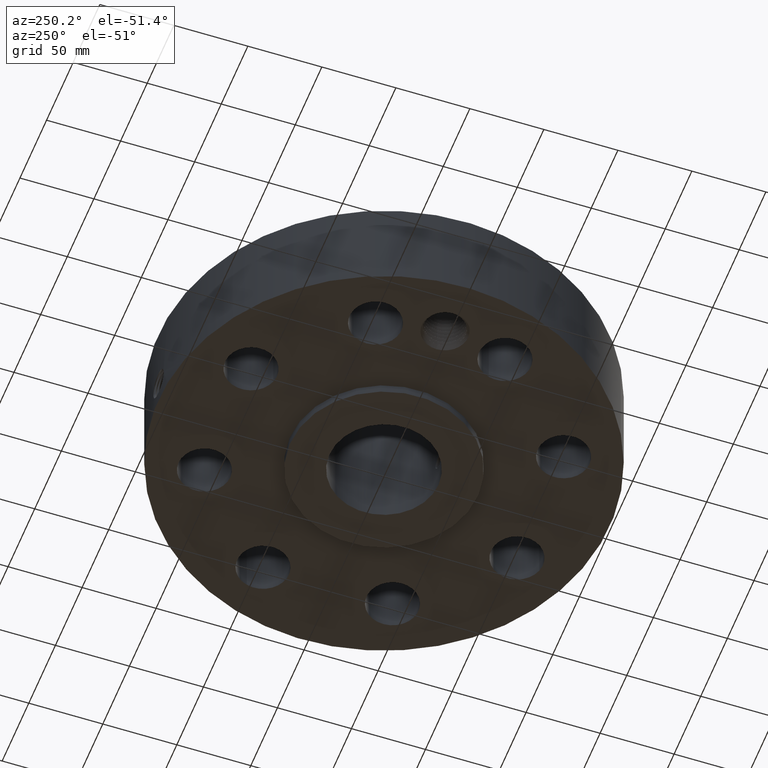
[diagram: clean part render]
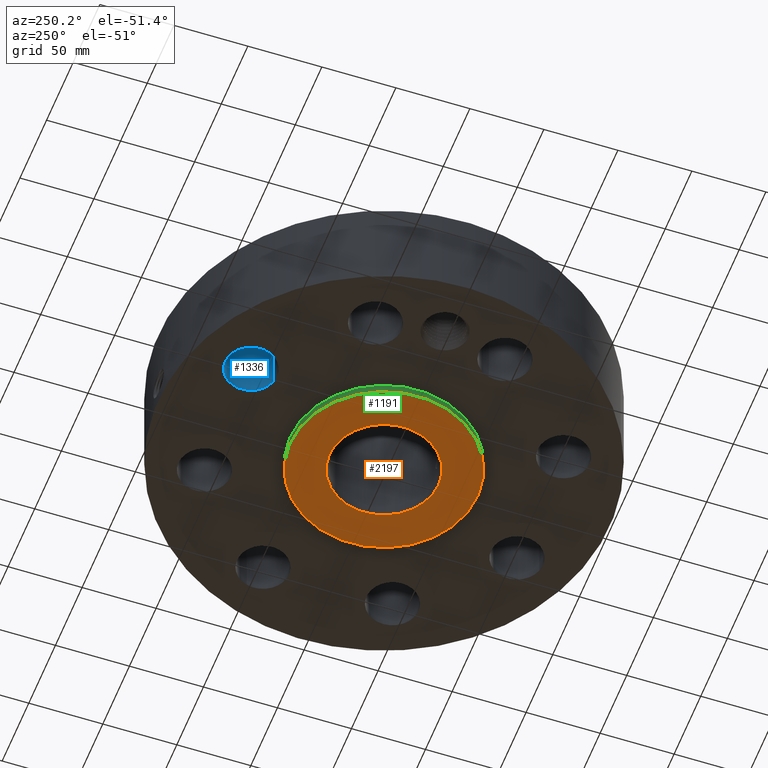
[diagram: same view with three faces highlighted in distinct colors, each labeled with its STEP entity id]
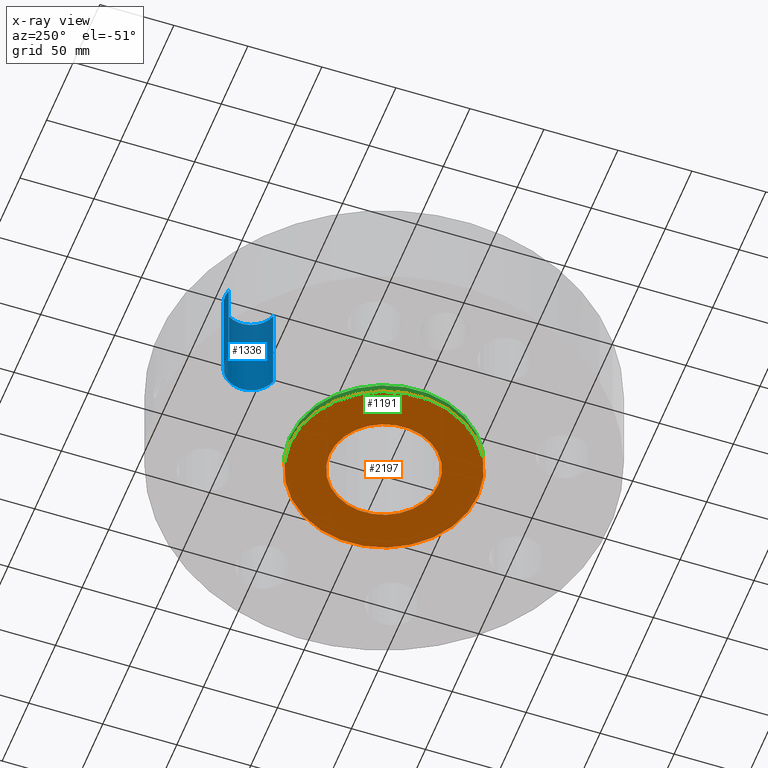
[diagram: x-ray of the same camera — body ghosted, the three highlighted faces saturated]
A machine part, auxiliary view with three faces highlighted in distinct colors.
The next image is the same camera in x-ray (body ghosted, the three faces saturated) — at least one of them is partly hidden behind the body in this view.
Their STEP definitions:

[orange] entity #2197 — the highlighted planar face has unit normal (0, 0, -1).
#1156=AXIS2_PLACEMENT_3D('Circle Axis2P3D',#1154,#1155,$) ;
#1182=AXIS2_PLACEMENT_3D('Circle Axis2P3D',#1180,#1181,$) ;
#2173=AXIS2_PLACEMENT_3D('Plane Axis2P3D',#2170,#2171,#2172) ;
#2181=AXIS2_PLACEMENT_3D('Circle Axis2P3D',#2179,#2180,$) ;
#2190=AXIS2_PLACEMENT_3D('Circle Axis2P3D',#2188,#2189,$) ;
#1154=CARTESIAN_POINT('Axis2P3D Location',(0.,0.,0.)) ;
#1158=CARTESIAN_POINT('Vertex',(1.19856384652,2.19395640473,0.)) ;
#1160=CARTESIAN_POINT('Vertex',(-1.19856384652,-2.19395640473,0.)) ;
#1180=CARTESIAN_POINT('Axis2P3D Location',(0.,0.,0.)) ;
#2170=CARTESIAN_POINT('Axis2P3D Location',(0.,1.45000000001,0.)) ;
#2179=CARTESIAN_POINT('Axis2P3D Location',(0.,0.,0.)) ;
#2183=CARTESIAN_POINT('Vertex',(0.695167030979,1.27249471475,-5.59482469102E-015)) ;
#2185=CARTESIAN_POINT('Vertex',(-0.695167030979,-1.27249471475,-5.59482469102E-015)) ;
#2188=CARTESIAN_POINT('Axis2P3D Location',(0.,0.,0.)) ;
#1155=DIRECTION('Axis2P3D Direction',(0.,0.,-0.0393700787402)) ;
#1181=DIRECTION('Axis2P3D Direction',(0.,0.,-0.0393700787402)) ;
#2171=DIRECTION('Axis2P3D Direction',(0.,0.,-0.0393700787402)) ;
#2172=DIRECTION('Axis2P3D XDirection',(0.0393700787402,0.,0.)) ;
#2180=DIRECTION('Axis2P3D Direction',(0.,0.,-0.0393700787402)) ;
#2189=DIRECTION('Axis2P3D Direction',(0.,0.,-0.0393700787402)) ;
#2176=ORIENTED_EDGE('',*,*,#1184,.T.) ;
#2177=ORIENTED_EDGE('',*,*,#1162,.T.) ;
#2194=ORIENTED_EDGE('',*,*,#2187,.F.) ;
#2195=ORIENTED_EDGE('',*,*,#2192,.F.) ;
#2196=FACE_BOUND('',#2193,.T.) ;
#2197=ADVANCED_FACE('PartBody',(#2178,#2196),#2174,.T.) ;
#1157=CIRCLE('generated circle',#1156,2.50000000001) ;
#1183=CIRCLE('generated circle',#1182,2.50000000001) ;
#2182=CIRCLE('generated circle',#2181,1.45000000001) ;
#2191=CIRCLE('generated circle',#2190,1.45000000001) ;
#1162=EDGE_CURVE('',#1159,#1161,#1157,.T.) ;
#1184=EDGE_CURVE('',#1161,#1159,#1183,.T.) ;
#2187=EDGE_CURVE('',#2184,#2186,#2182,.T.) ;
#2192=EDGE_CURVE('',#2186,#2184,#2191,.T.) ;
#2175=EDGE_LOOP('',(#2176,#2177)) ;
#2193=EDGE_LOOP('',(#2194,#2195)) ;
#2178=FACE_OUTER_BOUND('',#2175,.T.) ;
#2174=PLANE('',#2173) ;
#1159=VERTEX_POINT('',#1158) ;
#1161=VERTEX_POINT('',#1160) ;
#2184=VERTEX_POINT('',#2183) ;
#2186=VERTEX_POINT('',#2185) ;

[blue] entity #1336 — the highlighted cylindrical surface (edge-blend (fillet) strip) has radius 17.526 mm, axis along (0, 0, -1).
#345=AXIS2_PLACEMENT_3D('Circle Axis2P3D',#343,#344,$) ;
#657=AXIS2_PLACEMENT_3D('Circle Axis2P3D',#655,#656,$) ;
#1311=AXIS2_PLACEMENT_3D('Cylinder Axis2P3D',#1308,#1309,#1310) ;
#338=CARTESIAN_POINT('Vertex',(-1.52781316916,3.49536865163,0.250000000001)) ;
#340=CARTESIAN_POINT('Vertex',(-1.91633772214,4.81954714101,0.250000000001)) ;
#343=CARTESIAN_POINT('Axis2P3D Location',(-1.72207544565,4.15745789632,0.250000000001)) ;
#655=CARTESIAN_POINT('Axis2P3D Location',(-1.72207544565,4.15745789632,2.87000000001)) ;
#659=CARTESIAN_POINT('Vertex',(-1.91633772214,4.81954714101,2.87000000001)) ;
#661=CARTESIAN_POINT('Vertex',(-1.52781316916,3.49536865163,2.87000000001)) ;
#1308=CARTESIAN_POINT('Axis2P3D Location',(-1.72207544565,4.15745789632,2.86606299214)) ;
#1313=CARTESIAN_POINT('Line Origine',(-1.52781316916,3.49536865163,1.56000000001)) ;
#1318=CARTESIAN_POINT('Line Origine',(-1.91633772214,4.81954714101,1.56000000001)) ;
#344=DIRECTION('Axis2P3D Direction',(0.,0.,-0.0393700787402)) ;
#656=DIRECTION('Axis2P3D Direction',(0.,0.,-0.0393700787402)) ;
#1309=DIRECTION('Axis2P3D Direction',(0.,0.,-0.0393700787402)) ;
#1310=DIRECTION('Axis2P3D XDirection',(-0.0110842335096,0.0377775444876,0.)) ;
#1314=DIRECTION('Vector Direction',(0.,0.,-0.0393700787402)) ;
#1319=DIRECTION('Vector Direction',(0.,0.,-0.0393700787402)) ;
#1315=VECTOR('Line Direction',#1314,0.0393700787402) ;
#1320=VECTOR('Line Direction',#1319,0.0393700787402) ;
#1331=ORIENTED_EDGE('',*,*,#1322,.F.) ;
#1332=ORIENTED_EDGE('',*,*,#347,.T.) ;
#1333=ORIENTED_EDGE('',*,*,#1317,.T.) ;
#1334=ORIENTED_EDGE('',*,*,#663,.F.) ;
#1336=ADVANCED_FACE('PartBody',(#1335),#1312,.F.) ;
#346=CIRCLE('generated circle',#345,0.690000000003) ;
#658=CIRCLE('generated circle',#657,0.690000000003) ;
#1312=CYLINDRICAL_SURFACE('generated cylinder',#1311,0.690000000003) ;
#347=EDGE_CURVE('',#341,#339,#346,.T.) ;
#663=EDGE_CURVE('',#660,#662,#658,.T.) ;
#1317=EDGE_CURVE('',#339,#662,#1316,.F.) ;
#1322=EDGE_CURVE('',#341,#660,#1321,.F.) ;
#1330=EDGE_LOOP('',(#1331,#1332,#1333,#1334)) ;
#1335=FACE_OUTER_BOUND('',#1330,.T.) ;
#1316=LINE('Line',#1313,#1315) ;
#1321=LINE('Line',#1318,#1320) ;
#339=VERTEX_POINT('',#338) ;
#341=VERTEX_POINT('',#340) ;
#660=VERTEX_POINT('',#659) ;
#662=VERTEX_POINT('',#661) ;

[green] entity #1191 — the highlighted cylindrical surface (partial cylindrical patch) has radius 63.5 mm, axis along (0, 0, -1).
#255=AXIS2_PLACEMENT_3D('Circle Axis2P3D',#253,#254,$) ;
#1152=AXIS2_PLACEMENT_3D('Cylinder Axis2P3D',#1149,#1150,#1151) ;
#1182=AXIS2_PLACEMENT_3D('Circle Axis2P3D',#1180,#1181,$) ;
#248=CARTESIAN_POINT('Vertex',(1.19856384652,2.19395640473,0.250000000001)) ;
#250=CARTESIAN_POINT('Vertex',(-1.19856384652,-2.19395640473,0.250000000001)) ;
#253=CARTESIAN_POINT('Axis2P3D Location',(0.,0.,0.250000000001)) ;
#1149=CARTESIAN_POINT('Axis2P3D Location',(0.,0.,3.43500000001)) ;
#1158=CARTESIAN_POINT('Vertex',(1.19856384652,2.19395640473,0.)) ;
#1160=CARTESIAN_POINT('Vertex',(-1.19856384652,-2.19395640473,0.)) ;
#1163=CARTESIAN_POINT('Line Origine',(1.19856384652,2.19395640473,0.125000000001)) ;
#1168=CARTESIAN_POINT('Line Origine',(-1.19856384652,-2.19395640473,0.125000000001)) ;
#1180=CARTESIAN_POINT('Axis2P3D Location',(0.,0.,0.)) ;
#254=DIRECTION('Axis2P3D Direction',(0.,0.,-0.0393700787402)) ;
#1150=DIRECTION('Axis2P3D Direction',(0.,0.,-0.0393700787402)) ;
#1151=DIRECTION('Axis2P3D XDirection',(-0.0188750212049,-0.0345504945626,0.)) ;
#1164=DIRECTION('Vector Direction',(0.,0.,-0.0393700787402)) ;
#1169=DIRECTION('Vector Direction',(0.,0.,-0.0393700787402)) ;
#1181=DIRECTION('Axis2P3D Direction',(0.,0.,-0.0393700787402)) ;
#1165=VECTOR('Line Direction',#1164,0.0393700787402) ;
#1170=VECTOR('Line Direction',#1169,0.0393700787402) ;
#1186=ORIENTED_EDGE('',*,*,#1184,.F.) ;
#1187=ORIENTED_EDGE('',*,*,#1172,.T.) ;
#1188=ORIENTED_EDGE('',*,*,#257,.T.) ;
#1189=ORIENTED_EDGE('',*,*,#1167,.F.) ;
#1191=ADVANCED_FACE('PartBody',(#1190),#1153,.T.) ;
#256=CIRCLE('generated circle',#255,2.50000000001) ;
#1183=CIRCLE('generated circle',#1182,2.50000000001) ;
#1153=CYLINDRICAL_SURFACE('generated cylinder',#1152,2.50000000001) ;
#257=EDGE_CURVE('',#251,#249,#256,.T.) ;
#1167=EDGE_CURVE('',#1159,#249,#1166,.F.) ;
#1172=EDGE_CURVE('',#1161,#251,#1171,.F.) ;
#1184=EDGE_CURVE('',#1161,#1159,#1183,.T.) ;
#1185=EDGE_LOOP('',(#1186,#1187,#1188,#1189)) ;
#1190=FACE_OUTER_BOUND('',#1185,.T.) ;
#1166=LINE('Line',#1163,#1165) ;
#1171=LINE('Line',#1168,#1170) ;
#249=VERTEX_POINT('',#248) ;
#251=VERTEX_POINT('',#250) ;
#1159=VERTEX_POINT('',#1158) ;
#1161=VERTEX_POINT('',#1160) ;